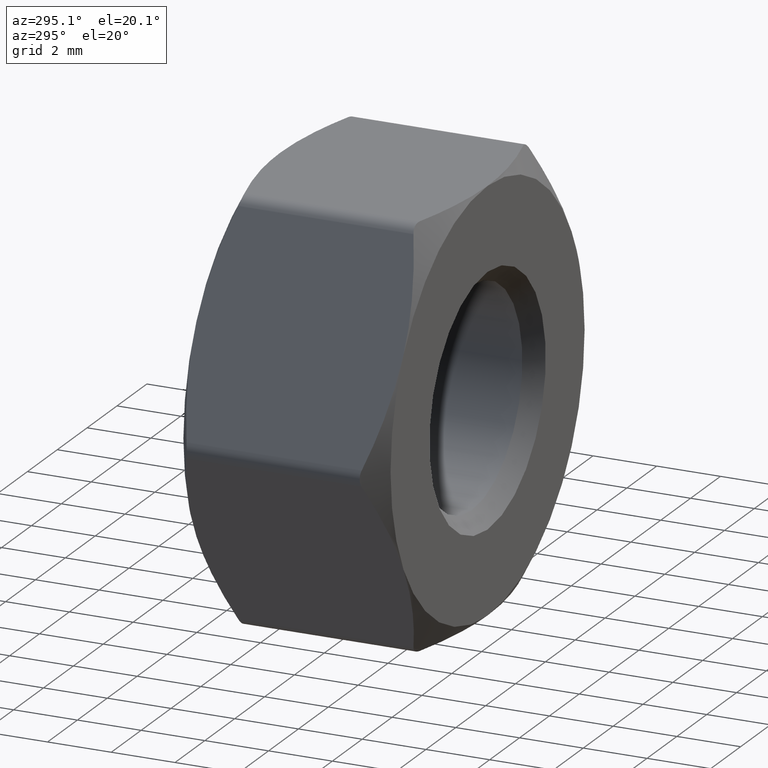
[diagram: clean part render]
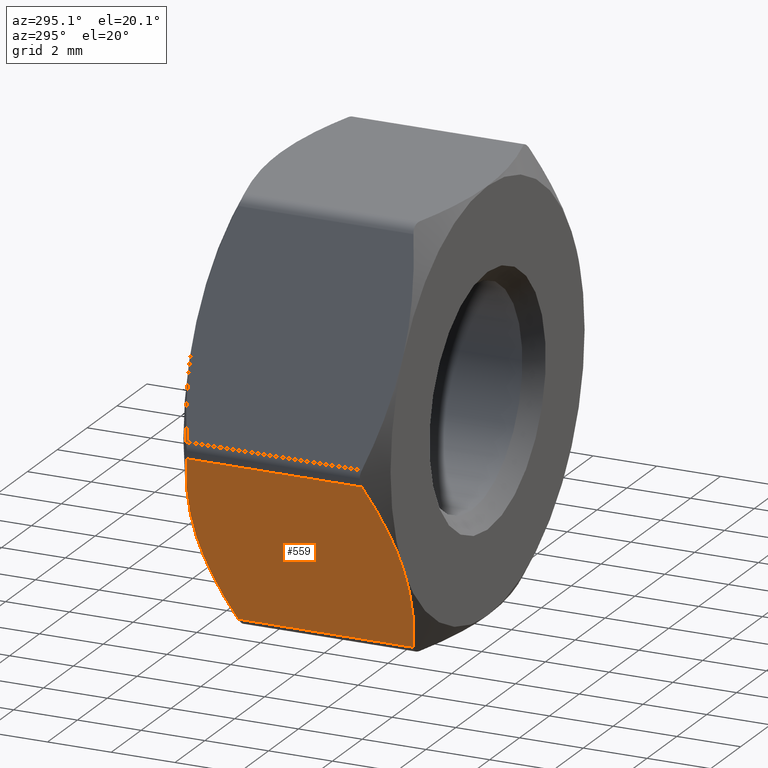
[diagram: same view with one face highlighted and labeled with its STEP entity id]
A machine part, auxiliary view. The second image highlights one B-rep face of the part: STEP entity #559.
In plain terms, the highlighted planar face has unit normal (0.866, -0, 0.5).
Its self-contained STEP definition (entity closure, byte-faithful):
#8 = DIRECTION ( 'NONE',  ( 0.4999999999999998900, 0.0000000000000000000, -0.8660254037844386000 ) ) ;
#13 = ORIENTED_EDGE ( 'NONE', *, *, #784, .T. ) ;
#20 = CARTESIAN_POINT ( 'NONE',  ( -5.482416541907166000, 3.250000000000001800, -3.504176001160719300 ) ) ;
#23 = CARTESIAN_POINT ( 'NONE',  ( -4.465291406935471700, 3.029614908576547400, -5.265888412587046700 ) ) ;
#98 = CARTESIAN_POINT ( 'NONE',  ( -6.794026904718141000, 3.058352876056136300, -1.232400213038263900 ) ) ;
#109 = LINE ( 'NONE', #1462, #961 ) ;
#116 = CARTESIAN_POINT ( 'NONE',  ( -5.775913707290535500, -3.250000000000001300, -2.995823998839279000 ) ) ;
#132 = CARTESIAN_POINT ( 'NONE',  ( -3.897114317029973600, 2.750326475674880200, -6.250000000000000000 ) ) ;
#200 = ORIENTED_EDGE ( 'NONE', *, *, #533, .T. ) ;
#258 = EDGE_CURVE ( 'NONE', #1057, #1316, #109, .T. ) ;
#271 = CARTESIAN_POINT ( 'NONE',  ( -4.180042760147912900, 2.903977949313087500, -5.759953561613371200 ) ) ;
#276 = CARTESIAN_POINT ( 'NONE',  ( -3.897114317028938000, -2.750326475674317100, -6.250000000001794100 ) ) ;
#360 = CARTESIAN_POINT ( 'NONE',  ( -5.923365020047801200, -3.238358288205309200, -2.740430833500968200 ) ) ;
#393 = CARTESIAN_POINT ( 'NONE',  ( -7.361215932167727500, 3.250000000000000000, -0.2500000000000002200 ) ) ;
#396 = CARTESIAN_POINT ( 'NONE',  ( -7.361215932168763100, 2.750326475674317500, -0.2499999999982073200 ) ) ;
#398 = B_SPLINE_CURVE_WITH_KNOTS ( 'NONE', 3,
 ( #276, #786, #542, #1312 ),
 .UNSPECIFIED., .F., .F.,
 ( 4, 4 ),
 ( 0.0002974810109325099900, 0.003797433802554442000 ),
 .UNSPECIFIED. ) ;
#425 = EDGE_CURVE ( 'NONE', #876, #1357, #1354, .T. ) ;
#438 = VERTEX_POINT ( 'NONE', #1257 ) ;
#440 = LINE ( 'NONE', #393, #1377 ) ;
#507 = DIRECTION ( 'NONE',  ( 0.8660254037844387100, -0.0000000000000000000, 0.4999999999999999400 ) ) ;
#517 = ORIENTED_EDGE ( 'NONE', *, *, #258, .T. ) ;
#533 = EDGE_CURVE ( 'NONE', #1357, #1565, #440, .T. ) ;
#542 = CARTESIAN_POINT ( 'NONE',  ( -5.039851529400916500, -3.250000000000001800, -4.270721088473901100 ) ) ;
#559 = ADVANCED_FACE ( 'NONE', ( #1513 ), #1521, .F. ) ;
#603 = CARTESIAN_POINT ( 'NONE',  ( -6.360320613116882300, -3.159567907072293700, -1.983601545653926700 ) ) ;
#648 = EDGE_CURVE ( 'NONE', #438, #1057, #1573, .T. ) ;
#716 = CARTESIAN_POINT ( 'NONE',  ( -6.218478719796785900, 3.250000000000001300, -2.229278911526098500 ) ) ;
#744 = CARTESIAN_POINT ( 'NONE',  ( -6.793038842262229900, -3.029614908576546900, -1.234111587412951300 ) ) ;
#784 = EDGE_CURVE ( 'NONE', #1316, #876, #398, .T. ) ;
#786 = CARTESIAN_POINT ( 'NONE',  ( -4.464303344479560600, -3.058352876056137100, -5.267599786961736400 ) ) ;
#802 = CARTESIAN_POINT ( 'NONE',  ( -3.897114317029973600, 2.750326475674880200, -6.250000000000000000 ) ) ;
#838 = CARTESIAN_POINT ( 'NONE',  ( -5.629165124598851700, 3.249999999999998200, -3.249999999999998200 ) ) ;
#865 = CARTESIAN_POINT ( 'NONE',  ( -3.897114317028938000, -2.750326475674317100, -6.250000000001794100 ) ) ;
#876 = VERTEX_POINT ( 'NONE', #1547 ) ;
#888 = CARTESIAN_POINT ( 'NONE',  ( -3.752776749732567000, 3.250000000000000000, -6.500000000000000900 ) ) ;
#899 = CARTESIAN_POINT ( 'NONE',  ( -5.629165124598851700, 3.249999999999998200, -3.249999999999998200 ) ) ;
#930 = ORIENTED_EDGE ( 'NONE', *, *, #1131, .T. ) ;
#961 = VECTOR ( 'NONE', #1330, 1000.000000000000000 ) ;
#1000 = CARTESIAN_POINT ( 'NONE',  ( -7.361215932167727500, -2.750326475674880600, -0.2500000000000014400 ) ) ;
#1006 = CARTESIAN_POINT ( 'NONE',  ( -5.629165124598851700, -3.249999999999998200, -3.249999999999998200 ) ) ;
#1057 = VERTEX_POINT ( 'NONE', #802 ) ;
#1131 = EDGE_CURVE ( 'NONE', #1565, #438, #1460, .T. ) ;
#1141 = CARTESIAN_POINT ( 'NONE',  ( -7.361215932167727500, -2.750326475674880600, -0.2500000000000014400 ) ) ;
#1150 = ORIENTED_EDGE ( 'NONE', *, *, #425, .T. ) ;
#1253 = EDGE_LOOP ( 'NONE', ( #1150, #200, #930, #1276, #517, #13 ) ) ;
#1257 = CARTESIAN_POINT ( 'NONE',  ( -5.629165124598851700, 3.249999999999998200, -3.249999999999998200 ) ) ;
#1266 = CARTESIAN_POINT ( 'NONE',  ( -5.334965229149904800, 3.238358288205309200, -3.759569166499032300 ) ) ;
#1276 = ORIENTED_EDGE ( 'NONE', *, *, #648, .T. ) ;
#1286 = CARTESIAN_POINT ( 'NONE',  ( -5.043057695669497200, 3.193121803873832000, -4.265167845599204800 ) ) ;
#1312 = CARTESIAN_POINT ( 'NONE',  ( -5.629165124598851700, -3.249999999999998200, -3.249999999999998200 ) ) ;
#1316 = VERTEX_POINT ( 'NONE', #865 ) ;
#1330 = DIRECTION ( 'NONE',  ( 0.0000000000000000000, -1.000000000000000000, 0.0000000000000000000 ) ) ;
#1354 = B_SPLINE_CURVE_WITH_KNOTS ( 'NONE', 3,
 ( #1006, #116, #360, #1624, #603, #744, #1490, #1000 ),
 .UNSPECIFIED., .F., .F.,
 ( 4, 2, 2, 4 ),
 ( 0.003797433802554442000, 0.004668978453557809200, 0.005540523104561176000, 0.007283612406567911400 ),
 .UNSPECIFIED. ) ;
#1357 = VERTEX_POINT ( 'NONE', #1141 ) ;
#1377 = VECTOR ( 'NONE', #1517, 1000.000000000000000 ) ;
#1439 = AXIS2_PLACEMENT_3D ( 'NONE', #888, #507, #8 ) ;
#1460 = B_SPLINE_CURVE_WITH_KNOTS ( 'NONE', 3,
 ( #1480, #98, #716, #838 ),
 .UNSPECIFIED., .F., .F.,
 ( 4, 4 ),
 ( 0.0002974810109325098800, 0.003797433802554437600 ),
 .UNSPECIFIED. ) ;
#1462 = CARTESIAN_POINT ( 'NONE',  ( -3.897114317029973600, 3.250000000000000000, -6.250000000000000000 ) ) ;
#1480 = CARTESIAN_POINT ( 'NONE',  ( -7.361215932168763100, 2.750326475674317500, -0.2499999999982073200 ) ) ;
#1490 = CARTESIAN_POINT ( 'NONE',  ( -7.078287489049791300, -2.903977949313087900, -0.7400464383866307600 ) ) ;
#1513 = FACE_OUTER_BOUND ( 'NONE', #1253, .T. ) ;
#1517 = DIRECTION ( 'NONE',  ( -0.0000000000000000000, 1.000000000000000000, -0.0000000000000000000 ) ) ;
#1521 = PLANE ( 'NONE',  #1439 ) ;
#1537 = CARTESIAN_POINT ( 'NONE',  ( -4.898009636080820100, 3.159567907072294200, -4.516398454346073300 ) ) ;
#1547 = CARTESIAN_POINT ( 'NONE',  ( -5.629165124598851700, -3.249999999999998200, -3.249999999999998200 ) ) ;
#1565 = VERTEX_POINT ( 'NONE', #396 ) ;
#1573 = B_SPLINE_CURVE_WITH_KNOTS ( 'NONE', 3,
 ( #899, #20, #1266, #1286, #1537, #23, #271, #132 ),
 .UNSPECIFIED., .F., .F.,
 ( 4, 2, 2, 4 ),
 ( 0.003797433802554437600, 0.004668978453557805700, 0.005540523104561174300, 0.007283612406567911400 ),
 .UNSPECIFIED. ) ;
#1624 = CARTESIAN_POINT ( 'NONE',  ( -6.215272553528202500, -3.193121803873831200, -2.234832154400793900 ) ) ;